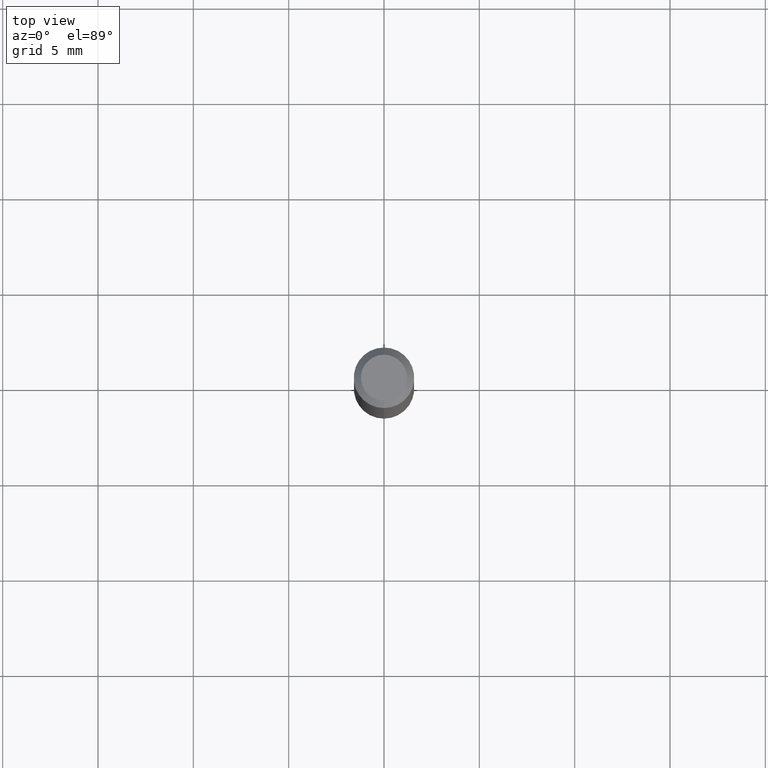
[diagram: clean part render]
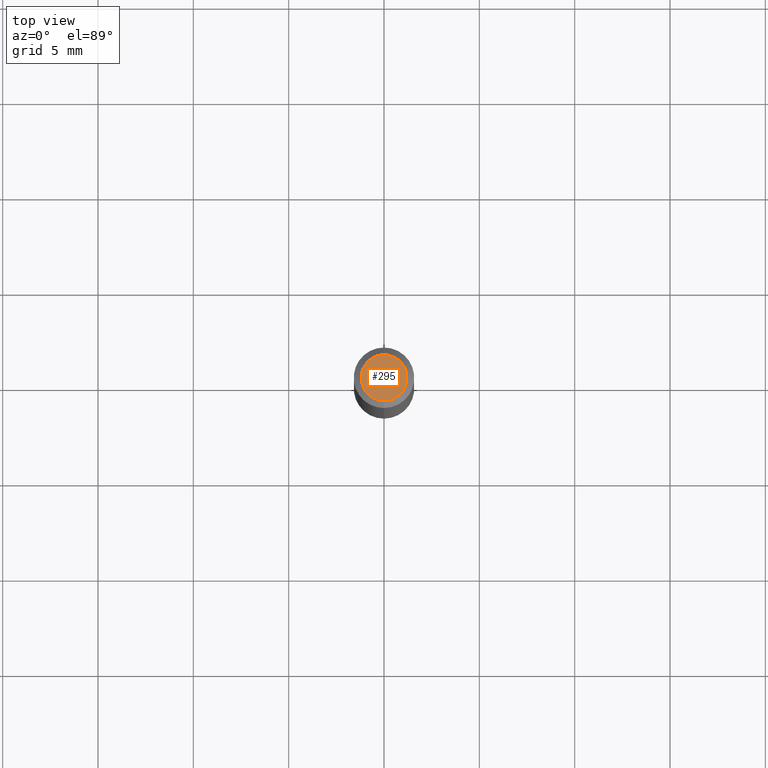
[diagram: same view with one face highlighted and labeled with its STEP entity id]
A machine part, top view. The second image highlights one B-rep face of the part: STEP entity #295.
In plain terms, the highlighted planar face has unit normal (0, -0, -1).
Its self-contained STEP definition (entity closure, byte-faithful):
#2 = FACE_OUTER_BOUND ( 'NONE', #406, .T. ) ;
#37 = DIRECTION ( 'NONE',  ( -6.982962677686266711E-15, -1.000000000000000000, 3.491465602701382696E-15 ) ) ;
#43 = CARTESIAN_POINT ( 'NONE',  ( 2.166956045097350736E-46, -3.093811083820953725E-32, -8.861067058564863072E-18 ) ) ;
#84 = CARTESIAN_POINT ( 'NONE',  ( 3.316907271900976096E-16, 0.04749999999999999362, -1.702751496575980682E-16 ) ) ;
#150 = AXIS2_PLACEMENT_3D ( 'NONE', #396, #511, #355 ) ;
#200 = CIRCLE ( 'NONE', #150, 0.04749999999999999362 ) ;
#219 = ORIENTED_EDGE ( 'NONE', *, *, #302, .T. ) ;
#239 = DIRECTION ( 'NONE',  ( -2.445479794674199112E-29, 3.491465602701382301E-15, 1.000000000000000000 ) ) ;
#246 = AXIS2_PLACEMENT_3D ( 'NONE', #84, #363, #285 ) ;
#276 = PLANE ( 'NONE',  #246 ) ;
#285 = DIRECTION ( 'NONE',  ( 6.982962677686265922E-15, 1.000000000000000000, -3.491465602701382696E-15 ) ) ;
#295 = ADVANCED_FACE ( 'NONE', ( #2 ), #276, .F. ) ;
#300 = ORIENTED_EDGE ( 'NONE', *, *, #325, .T. ) ;
#302 = EDGE_CURVE ( 'NONE', #402, #354, #441, .T. ) ;
#325 = EDGE_CURVE ( 'NONE', #354, #402, #200, .T. ) ;
#338 = AXIS2_PLACEMENT_3D ( 'NONE', #43, #239, #37 ) ;
#354 = VERTEX_POINT ( 'NONE', #359 ) ;
#355 = DIRECTION ( 'NONE',  ( -6.982962677686266711E-15, -1.000000000000000000, 3.491465602701382696E-15 ) ) ;
#359 = CARTESIAN_POINT ( 'NONE',  ( 3.840629472727447874E-16, 0.04749999999999999362, -1.747056831868805136E-16 ) ) ;
#363 = DIRECTION ( 'NONE',  ( 2.445479794674198272E-29, -3.491465602701382696E-15, -1.000000000000000000 ) ) ;
#366 = CARTESIAN_POINT ( 'NONE',  ( -3.773273898774340269E-16, -0.04749999999999999362, 1.569835490697507813E-16 ) ) ;
#396 = CARTESIAN_POINT ( 'NONE',  ( 2.166956045097350736E-46, -3.093811083820953725E-32, -8.861067058564863072E-18 ) ) ;
#402 = VERTEX_POINT ( 'NONE', #366 ) ;
#406 = EDGE_LOOP ( 'NONE', ( #300, #219 ) ) ;
#441 = CIRCLE ( 'NONE', #338, 0.04749999999999999362 ) ;
#511 = DIRECTION ( 'NONE',  ( -2.445479794674199112E-29, 3.491465602701382301E-15, 1.000000000000000000 ) ) ;